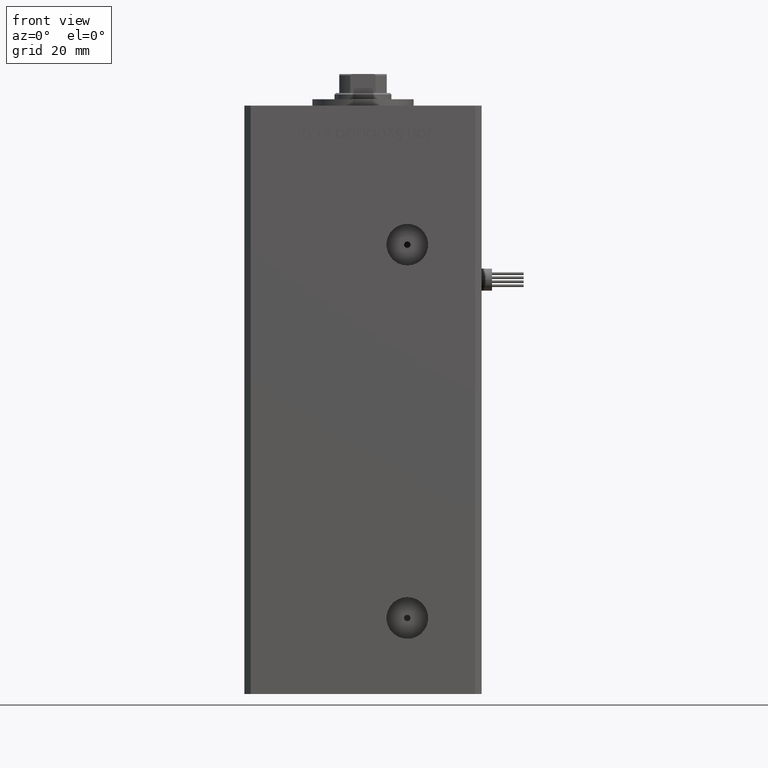
[diagram: clean part render]
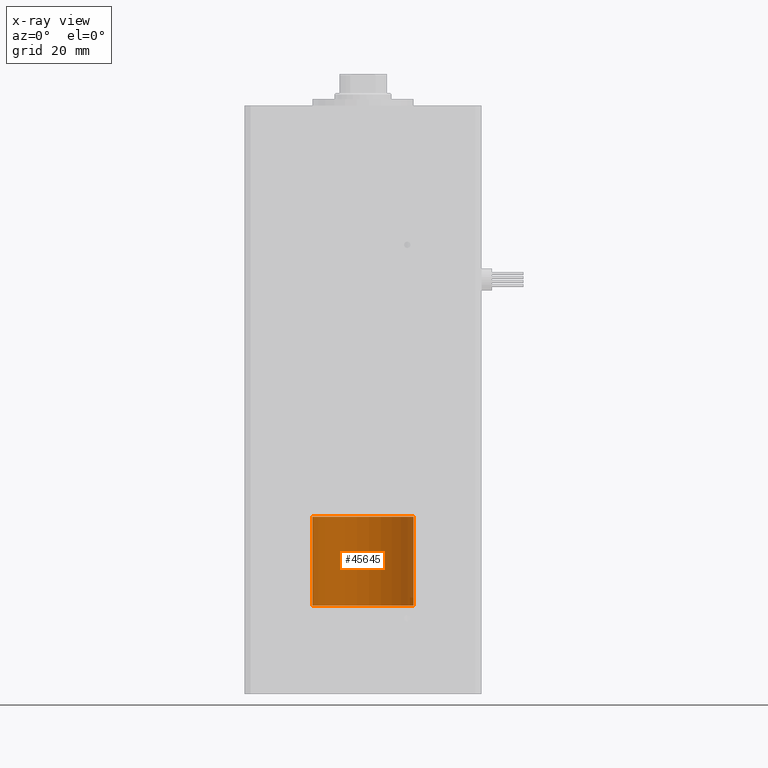
[diagram: x-ray — body ghosted, one internal face saturated and labeled with its STEP entity id]
A machine part, front view, then the same camera in x-ray: the body is ghosted and one INTERNAL B-rep face — a face not visible from any outside direction — is saturated and labeled: STEP entity #45645.
In plain terms, the highlighted cylindrical surface (partial cylindrical patch) has radius 16 mm, axis along (-0, -0, -1).
Its self-contained STEP definition (entity closure, byte-faithful):
#1901 = LINE ( 'NONE', #18908, #10288 ) ;
#3916 = CARTESIAN_POINT ( 'NONE',  ( 0.000000000000000000, 0.000000000000000000, 0.000000000000000000 ) ) ;
#4050 = CARTESIAN_POINT ( 'NONE',  ( 15.99999999999999645, 1.959434878635764737E-15, 28.00000000000000000 ) ) ;
#4573 = EDGE_CURVE ( 'NONE', #49374, #52083, #36882, .T. ) ;
#6084 = AXIS2_PLACEMENT_3D ( 'NONE', #55038, #42485, #17368 ) ;
#6598 = DIRECTION ( 'NONE',  ( 1.000000000000000000, 0.000000000000000000, 0.000000000000000000 ) ) ;
#6629 = EDGE_CURVE ( 'NONE', #28394, #42622, #34259, .T. ) ;
#8374 = AXIS2_PLACEMENT_3D ( 'NONE', #3916, #42958, #42689 ) ;
#8976 = EDGE_CURVE ( 'NONE', #28394, #49374, #1901, .T. ) ;
#9181 = LINE ( 'NONE', #13930, #25506 ) ;
#10208 = AXIS2_PLACEMENT_3D ( 'NONE', #48187, #52653, #6598 ) ;
#10288 = VECTOR ( 'NONE', #23921, 1000.000000000000000 ) ;
#10714 = EDGE_CURVE ( 'NONE', #42622, #52083, #9181, .T. ) ;
#13514 = CARTESIAN_POINT ( 'NONE',  ( -15.99999999999999645, 0.000000000000000000, 28.00000000000000000 ) ) ;
#13930 = CARTESIAN_POINT ( 'NONE',  ( -15.99999999999999645, 0.000000000000000000, 28.00000000000000000 ) ) ;
#17317 = ORIENTED_EDGE ( 'NONE', *, *, #8976, .T. ) ;
#17368 = DIRECTION ( 'NONE',  ( -1.000000000000000000, 0.000000000000000000, 0.000000000000000000 ) ) ;
#18908 = CARTESIAN_POINT ( 'NONE',  ( 15.99999999999999645, 1.959434878635764737E-15, 28.00000000000000000 ) ) ;
#23921 = DIRECTION ( 'NONE',  ( -0.000000000000000000, -0.000000000000000000, -1.000000000000000000 ) ) ;
#24767 = CARTESIAN_POINT ( 'NONE',  ( -15.99999999999999645, 0.000000000000000000, 0.000000000000000000 ) ) ;
#25506 = VECTOR ( 'NONE', #26475, 1000.000000000000000 ) ;
#26475 = DIRECTION ( 'NONE',  ( -0.000000000000000000, -0.000000000000000000, -1.000000000000000000 ) ) ;
#28394 = VERTEX_POINT ( 'NONE', #4050 ) ;
#33848 = FACE_OUTER_BOUND ( 'NONE', #54617, .T. ) ;
#34067 = CARTESIAN_POINT ( 'NONE',  ( 15.99999999999999645, 1.959434878635764737E-15, 0.000000000000000000 ) ) ;
#34259 = CIRCLE ( 'NONE', #10208, 15.99999999999999645 ) ;
#34394 = CYLINDRICAL_SURFACE ( 'NONE', #6084, 15.99999999999999645 ) ;
#36882 = CIRCLE ( 'NONE', #8374, 15.99999999999999645 ) ;
#42485 = DIRECTION ( 'NONE',  ( -0.000000000000000000, -0.000000000000000000, -1.000000000000000000 ) ) ;
#42622 = VERTEX_POINT ( 'NONE', #13514 ) ;
#42689 = DIRECTION ( 'NONE',  ( 1.000000000000000000, 0.000000000000000000, 0.000000000000000000 ) ) ;
#42958 = DIRECTION ( 'NONE',  ( 0.000000000000000000, 0.000000000000000000, 1.000000000000000000 ) ) ;
#45645 = ADVANCED_FACE ( 'NONE', ( #33848 ), #34394, .T. ) ;
#48187 = CARTESIAN_POINT ( 'NONE',  ( 0.000000000000000000, 0.000000000000000000, 28.00000000000000000 ) ) ;
#49374 = VERTEX_POINT ( 'NONE', #34067 ) ;
#51011 = ORIENTED_EDGE ( 'NONE', *, *, #4573, .T. ) ;
#51288 = ORIENTED_EDGE ( 'NONE', *, *, #10714, .F. ) ;
#52083 = VERTEX_POINT ( 'NONE', #24767 ) ;
#52653 = DIRECTION ( 'NONE',  ( 0.000000000000000000, 0.000000000000000000, 1.000000000000000000 ) ) ;
#54286 = ORIENTED_EDGE ( 'NONE', *, *, #6629, .F. ) ;
#54617 = EDGE_LOOP ( 'NONE', ( #54286, #17317, #51011, #51288 ) ) ;
#55038 = CARTESIAN_POINT ( 'NONE',  ( 0.000000000000000000, 0.000000000000000000, 28.00000000000000000 ) ) ;